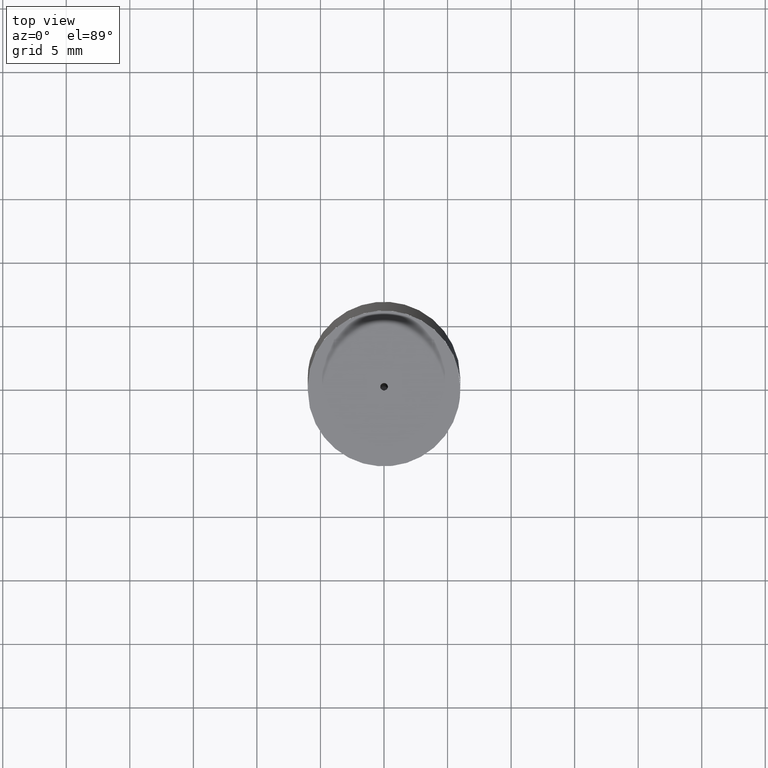
[diagram: clean part render]
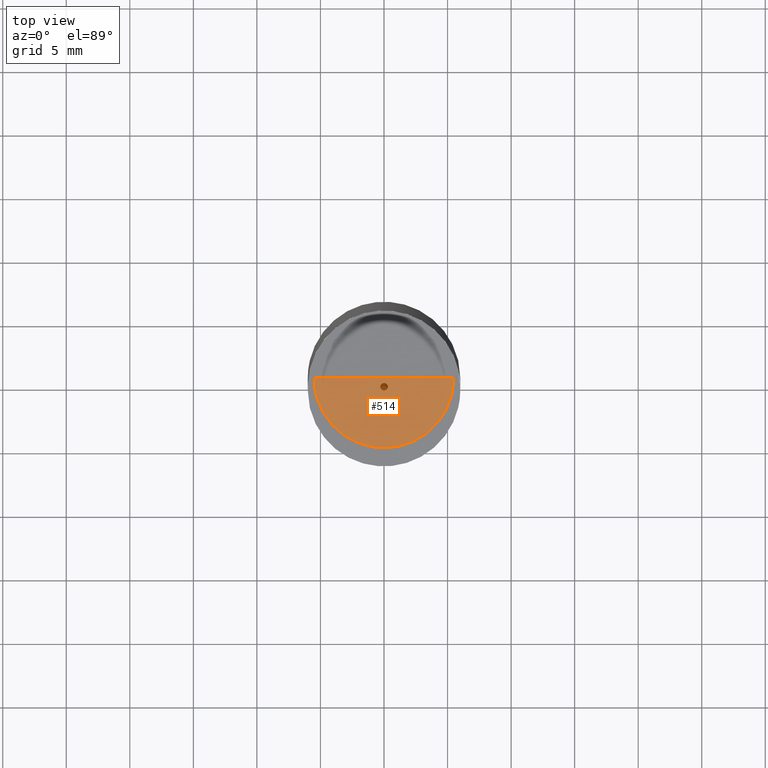
[diagram: same view with one face highlighted and labeled with its STEP entity id]
A machine part, top view. The second image highlights one B-rep face of the part: STEP entity #514.
In plain terms, the highlighted face is a freeform B-spline surface patch.
Its self-contained STEP definition (entity closure, byte-faithful):
#109=CARTESIAN_POINT('',(5.5,0.0,40.0));
#113=CARTESIAN_POINT('',(-5.5,0.0,40.0));
#114=CARTESIAN_POINT('',(0.0,0.0,40.0));
#118=CARTESIAN_POINT('',(-5.5,-5.5,40.0));
#119=CARTESIAN_POINT('',(0.0,-5.5,40.0));
#120=CARTESIAN_POINT('',(5.5,-5.5,40.0));
#499=(
BOUNDED_SURFACE()
B_SPLINE_SURFACE(1,2,(
(#113,#118,#119,#120,#109),
(#114,#114,#114,#114,#114)
), .UNSPECIFIED.,.F.,.F.,.F.)
B_SPLINE_SURFACE_WITH_KNOTS((2,2),(3,2,3),(
0.0,1.0),(
0.0,0.5,1.0), .UNSPECIFIED.)
GEOMETRIC_REPRESENTATION_ITEM()
RATIONAL_B_SPLINE_SURFACE(((1.0,0.707106781187,1.0,0.707106781187,1.0),
(1.0,0.707106781187,1.0,0.707106781187,1.0)
))
REPRESENTATION_ITEM('')
SURFACE()
);
#500=(
BOUNDED_CURVE()
B_SPLINE_CURVE(2,(#109,#120,#119,#118,#113),.UNSPECIFIED.,.F.,.F.)
B_SPLINE_CURVE_WITH_KNOTS((3,2,3),
(0.0,0.5,1.0),.UNSPECIFIED.)
CURVE()
GEOMETRIC_REPRESENTATION_ITEM()
RATIONAL_B_SPLINE_CURVE((1.0,0.707106781187,1.0,0.707106781187,1.0))
REPRESENTATION_ITEM('')
);
#501=(
BOUNDED_CURVE()
B_SPLINE_CURVE(1,(#113,#114),.UNSPECIFIED.,.F.,.F.)
B_SPLINE_CURVE_WITH_KNOTS((2,2),
(0.0,1.0),.UNSPECIFIED.)
CURVE()
GEOMETRIC_REPRESENTATION_ITEM()
RATIONAL_B_SPLINE_CURVE((1.0,1.0))
REPRESENTATION_ITEM('')
);
#502=(
BOUNDED_CURVE()
B_SPLINE_CURVE(1,(#114,#109),.UNSPECIFIED.,.F.,.F.)
B_SPLINE_CURVE_WITH_KNOTS((2,2),
(0.0,1.0),.UNSPECIFIED.)
CURVE()
GEOMETRIC_REPRESENTATION_ITEM()
RATIONAL_B_SPLINE_CURVE((1.0,1.0))
REPRESENTATION_ITEM('')
);
#503=VERTEX_POINT('',#109);
#504=VERTEX_POINT('',#113);
#505=VERTEX_POINT('',#114);
#506=EDGE_CURVE('',#503,#504,#500,.T.);
#507=EDGE_CURVE('',#504,#505,#501,.T.);
#508=EDGE_CURVE('',#505,#503,#502,.T.);
#509=ORIENTED_EDGE('',*,*,#506,.T.);
#510=ORIENTED_EDGE('',*,*,#507,.T.);
#511=ORIENTED_EDGE('',*,*,#508,.T.);
#512=EDGE_LOOP('',(#509,#510,#511));
#513=FACE_OUTER_BOUND('',#512,.T.);
#514=ADVANCED_FACE('',(#513),#499,.T.);